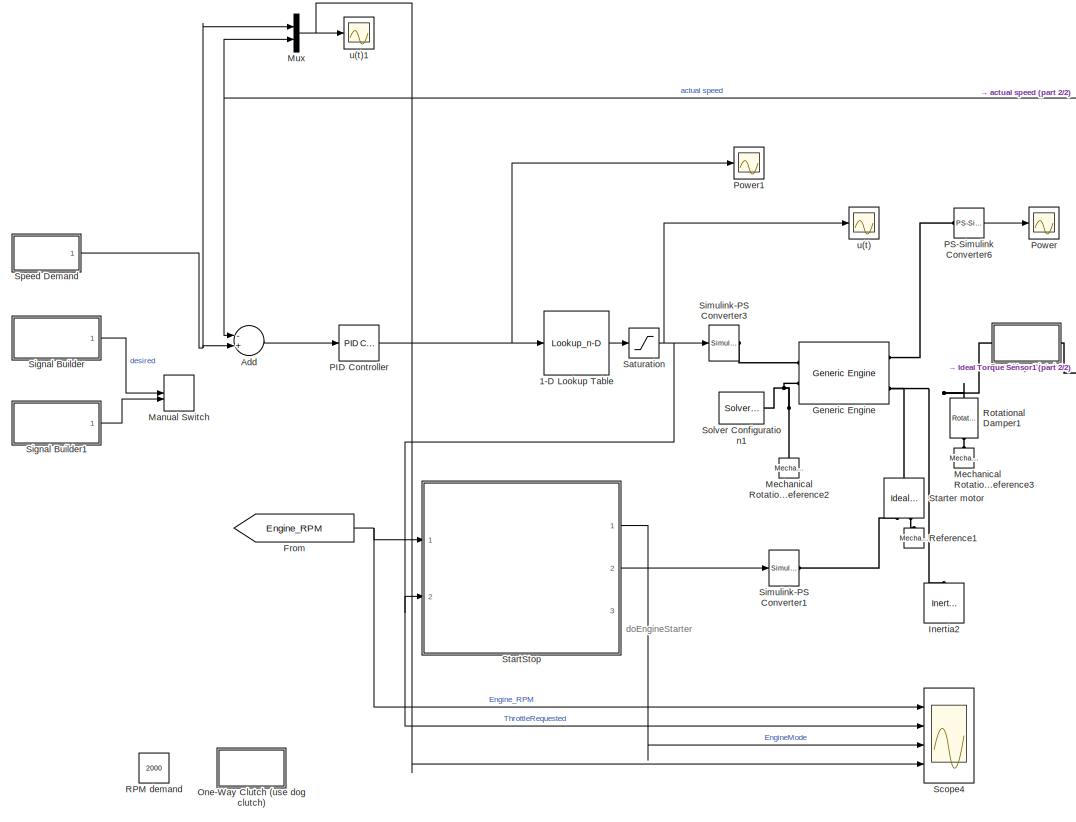
[diagram: root canvas - part 1/2, left side, full height]
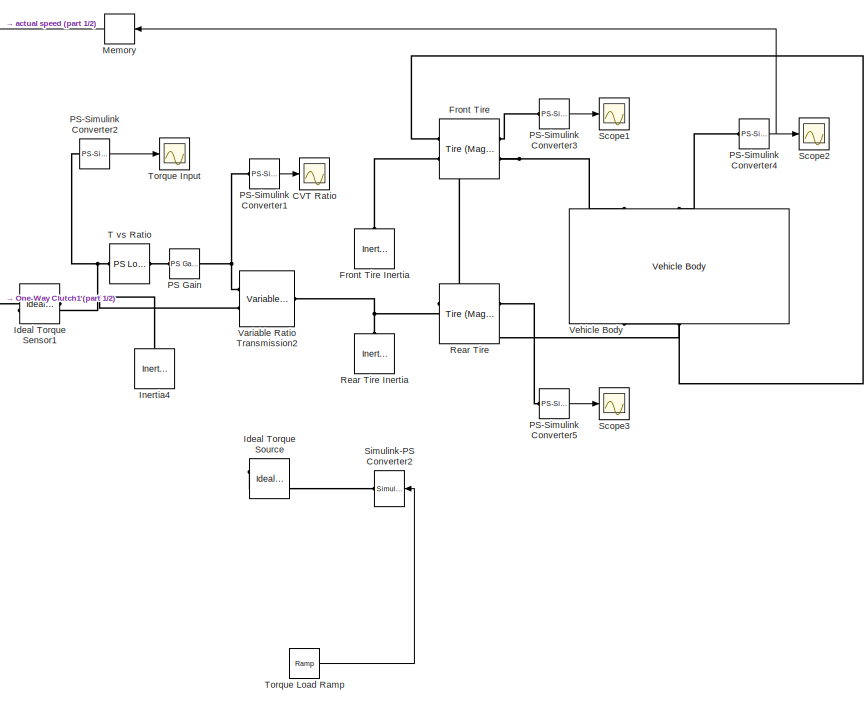
[diagram: root canvas - part 2/2, right side, full height]
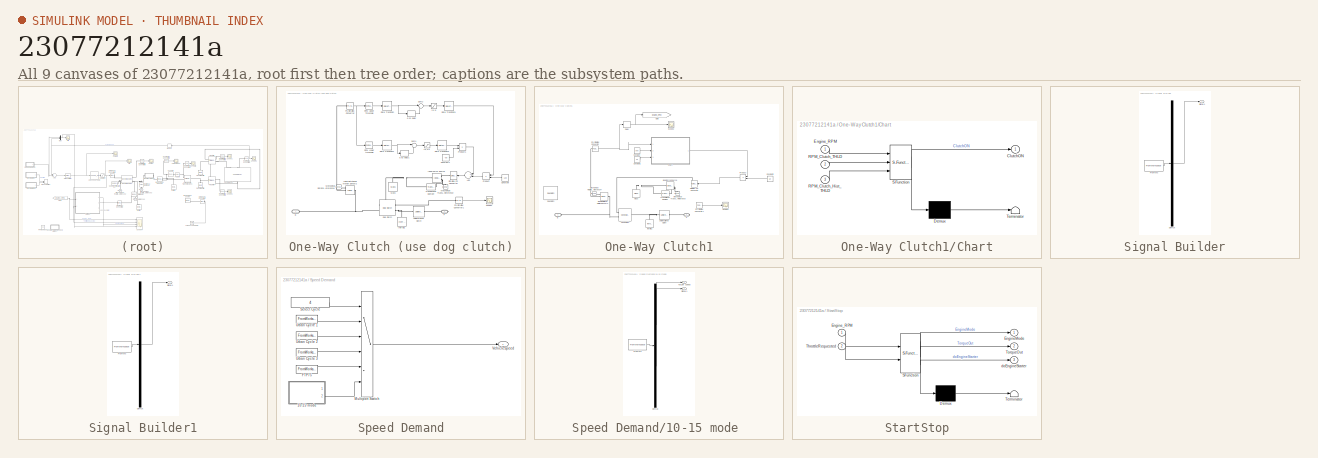
[diagram: thumbnail index - all 9 canvases of the model, root first then tree order]
MODEL slx_23077212141a
KIND model
BLOCK [Lookup_n-D] 1-D Lookup Table
  BreakpointsForDimension1 = [0 10]
  InternalRulePriority = Speed
  NumberOfTableDimensions = 1
  Ports = [1, 1]
  RndMeth = Simplest
  Table = [0 1]
BLOCK [Sum] Add
  InputSameDT = off
  Inputs = -+
  OutDataTypeStr = Inherit: Inherit via internal rule
  Ports = [2, 1]
  SaturateOnIntegerOverflow = off
BLOCK [Scope] CVT Ratio
  DataFormat = StructureWithTime
  Floating = off
  LimitDataPoints = off
  NumInputPorts = 1
  Ports = [1]
  SampleTime = 0
  SaveName = ScopeData1
  ShowLegends = off
  YMax = 22
  YMin = 2
BLOCK [From] From
  GotoTag = Engine_RPM
  TagVisibility = global
BLOCK [Reference] Front Tire   REF=sdl_lib/Tires & Vehicles/Tire (Magic Formula)
  B_m = 10
  B_m_unit = 1
  C_m = 1.9
  C_m_unit = 1
  ClassName = tire_magic
  ComponentPath = sdl.tires.tire_magic
  ComponentVariantNames = tire_magic
  ComponentVariants = sdl.tires.tire_magic
  D_m = 1
  D_m_unit = 1
  E_m = 0.97
  E_m_unit = 1
  F_x1 = 1.5*Vehicle_Mass_kg*9.8/2
  F_x1_unit = N
  F_z1 = Vehicle_Mass_kg*9.8/2
  F_z1_unit = N
  LogSimulationData = off
  Ports = [0, 0, 0, 0, 0, 2, 2]
  SchemaVersion = 1
  SourceBlock = sdl_lib/Tires & Vehicles/Tire (Magic Formula)
  SourceFile = sdl.tires.tire_magic
  SourceType = Tire (Magic Formula)
  alpha = -0.003
  alpha_unit = 1
  beta = 0.97
  beta_unit = 1
  coeff = 0.015
  coeff_a = 84e-4
  coeff_a_unit = 1
  coeff_b = 6.2e-4
  coeff_b_unit = s/m
  coeff_c = 1.6e-4
  coeff_c_unit = s^2/m^2
  coeff_unit = 1
  damping = 1000
  damping_unit = N/(m/s)
  fz0 = 4e+3
  fz0_unit = N
  inertia = 1
  inertia_unit = kg*m^2
  initial_velocity = 0
  initial_velocity_unit = rad/s
  kappa1 = 10
  kappa1_unit = 1
  model_compliance = 0
  model_compliance_unit = 1
  model_inertia = 0
  model_inertia_unit = 1
  model_resistance = 0
  model_resistance_unit = 1
  p_Cx = 1.685
  p_Cx_unit = 1
  p_Dx = [ 1.21 -0.037 ]
  p_Dx_unit = 1
  p_Ex = [ 0.344 0.095 -0.02 0 ]
  p_Ex_unit = 1
  p_Hx = [ -0.002 0.002 ]
  p_Hx_unit = 1
  p_Kx = [ 21.51 -0.163 0.245 ]
  p_Kx_unit = 1
  p_Vx = [ 0 0 ]
  p_Vx_unit = 1
  p_tire = 250e3
  p_tire_unit = Pa
  parameterization = 1
  parameterization_unit = 1
  r_e = 0.1778
  r_e_unit = m
  resistance_model = 1
  resistance_model_unit = 1
  stiffness = 1e+6
  stiffness_unit = N/m
  v_thr = 1e-3
  v_thr_unit = m/s
  v_tr_thr = 0.1
  v_tr_thr_unit = m/s
BLOCK [Reference] Front Tire Inertia  REF=fl_lib/Mechanical/Rotational Elements/Inertia
  ClassName = inertia
  ComponentPath = foundation.mechanical.rotational.inertia
  ComponentVariantNames = inertia
  ComponentVariants = foundation.mechanical.rotational.inertia
  LogSimulationData = off
  Ports = [0, 0, 0, 0, 0, 1]
  SchemaVersion = 1
  SourceBlock = fl_lib/Mechanical/Rotational Elements/Inertia
  SourceFile = foundation.mechanical.rotational.inertia
  SourceType = Inertia
  inertia = 0.01
  inertia_unit = kg*m^2
  t = 0
  t_priority = High
  t_specify = off
  t_unit = N*m
  w = 0
  w_priority = Low
  w_specify = on
  w_unit = rad/s
BLOCK [Reference] Generic Engine  REF=sdl_lib/Engines/Generic Engine
  ClassName = generic_engine
  ComponentPath = sdl.engines.generic_engine
  ComponentVariantNames = generic_engine
  ComponentVariants = sdl.engines.generic_engine
  LogSimulationData = on
  P_max = 10
  P_max_unit = HP
  Ports = [0, 0, 0, 0, 0, 2, 3]
  SchemaVersion = 1
  SourceBlock = sdl_lib/Engines/Generic Engine
  SourceFile = sdl.engines.generic_engine
  SourceType = Generic Engine
  T0 = 0
  T0_unit = 1
  bmep_tab = [ 0 250 500 625 750 1000 1.15e+3 1.25e+3 ]
  bmep_tab_unit = kPa
  bsfc_tab = [ 410 380 300 280 270 290 320 380; 410 370 290 270 260 270 285 320; 415 380 290 275 265 270 270 300; 420 390 310 290 285 280 280 285; 430 410 340 320 310 300 310 320; 450 430 370 340 330 330 350 380 ]
  bsfc_tab_unit = g/hr/kW
  displaced_volume = 400
  displaced_volume_unit = cm^3
  engine_type = 1
  engine_type_unit = 1
  fc_interp_method = 1
  fc_interp_method_unit = 1
  fc_model = 3
  fc_model_unit = 1
  fc_per_rev = 25
  fc_per_rev_unit = mg/rev
  fc_tab = [ 0.5 0.9 1.4 1.6 1.9 2.7 3.4 4.4; 1 1.7 2.7 3.1 3.6 5 6 7.4; 1.4 2.7 4 4.8 5.6 7.5 8.5 10.5; 2 3.6 5.8 6.7 8 10.4 11.7 13.3; 2.5 4.8 7.9 9.4 10.8 14 16.2 18.6; 3.1 6 10.3 11.9 13.8 18.4 22 26.5 ]
  fc_tab_unit = g/s
  fc_trq_tab = [ 0 80 160 200 240 320 360 400 ]
  fc_trq_tab_unit = N*m
  fc_w_tab = [ 1000 2e+3 3e+3 4e+3 5e+3 6e+3 ]
  fc_w_tab_unit = rpm
  idle_speed = 0
  idle_speed_reference = 800
  idle_speed_reference_unit = rpm
  idle_speed_unit = 1
  idle_w_thr = 10
  idle_w_thr_unit = rpm
  inertia = 0.01
  inertia_unit = kg*m^2
  initial_velocity = 0
  initial_velocity_unit = rpm
  interp_method = 1
  interp_method_unit = 1
  model_inertia = 1
  model_inertia_unit = 1
  model_parameterization = 1
  model_parameterization_unit = 1
  model_time_constant = 0
  model_time_constant_unit = 1
  pwr_tab = [ 2e+4 4e+4 7.8e+4 1.2e+5 1.45e+5 1.48e+5 1.25e+5 6e+4 ]
  pwr_tab_unit = W
  rev_per_cycle = 2
  rev_per_cycle_unit = 1
  tau_controller = 0.01
  tau_controller_unit = s
  time_constant = 0.2
  time_constant_unit = s
  trq_tab = [ 380 380 380 380 350 280 200 80 ]
  trq_tab_unit = N*m
  w_P_max = 8500
  w_P_max_unit = rpm
  w_max = 9000
  w_max_unit = rpm
  w_min = 500
  w_min_unit = rpm
  w_tab = [ 500 1000 2e+3 3e+3 4e+3 5e+3 6e+3 7e+3 ]
  w_tab_unit = rpm
  w_thr = 100
  w_thr_unit = rpm
BLOCK [Reference] Ideal Torque Sensor1  REF=fl_lib/Mechanical/Mechanical Sensors/Ideal Torque Sensor
  ClassName = torque
  ComponentPath = foundation.mechanical.sensors.torque
  ComponentVariantNames = torque
  ComponentVariants = foundation.mechanical.sensors.torque
  LogSimulationData = on
  Ports = [0, 0, 0, 0, 0, 1, 2]
  SchemaVersion = 1
  SourceBlock = fl_lib/Mechanical/Mechanical Sensors/Ideal Torque Sensor
  SourceFile = foundation.mechanical.sensors.torque
  SourceType = Ideal Torque Sensor
BLOCK [Reference] Ideal Torque Source  REF=fl_lib/Mechanical/Mechanical Sources/Ideal Torque Source
  ClassName = torque
  Commented = on
  ComponentPath = foundation.mechanical.sources.torque
  ComponentVariantNames = torque
  ComponentVariants = foundation.mechanical.sources.torque
  LogSimulationData = on
  Ports = [0, 0, 0, 0, 0, 1, 2]
  SchemaVersion = 1
  SourceBlock = fl_lib/Mechanical/Mechanical Sources/Ideal Torque Source
  SourceFile = foundation.mechanical.sources.torque
  SourceType = Ideal Torque Source
BLOCK [Reference] Inertia2  REF=fl_lib/Mechanical/Rotational Elements/Inertia
  ClassName = inertia
  Commented = on
  ComponentPath = foundation.mechanical.rotational.inertia
  ComponentVariantNames = inertia
  ComponentVariants = foundation.mechanical.rotational.inertia
  LogSimulationData = off
  Ports = [0, 0, 0, 0, 0, 1]
  SchemaVersion = 1
  SourceBlock = fl_lib/Mechanical/Rotational Elements/Inertia
  SourceFile = foundation.mechanical.rotational.inertia
  SourceType = Inertia
  inertia = 0.005
  inertia_unit = kg*m^2
  t = 0
  t_priority = High
  t_specify = off
  t_unit = N*m
  w = 800
  w_priority = High
  w_specify = off
  w_unit = rpm
BLOCK [Reference] Inertia4  REF=fl_lib/Mechanical/Rotational Elements/Inertia
  ClassName = inertia
  ComponentPath = foundation.mechanical.rotational.inertia
  ComponentVariantNames = inertia
  ComponentVariants = foundation.mechanical.rotational.inertia
  LogSimulationData = on
  Ports = [0, 0, 0, 0, 0, 1]
  SchemaVersion = 1
  SourceBlock = fl_lib/Mechanical/Rotational Elements/Inertia
  SourceFile = foundation.mechanical.rotational.inertia
  SourceType = Inertia
  inertia = 0.005
  inertia_unit = kg*m^2
  t = 0
  t_priority = High
  t_specify = off
  t_unit = N*m
  w = 0
  w_priority = Low
  w_specify = on
  w_unit = rpm
BLOCK [ManualSwitch] Manual Switch
  CurrentSetting = 0
BLOCK [Reference] Mechanical Rotational Reference2  REF=fl_lib/Mechanical/Rotational Elements/Mechanical
Rotational Reference
  ClassName = reference
  ComponentPath = foundation.mechanical.rotational.reference
  ComponentVariantNames = reference
  ComponentVariants = foundation.mechanical.rotational.reference
  LogSimulationData = off
  Ports = [0, 0, 0, 0, 0, 1]
  SchemaVersion = 1
  SourceBlock = fl_lib/Mechanical/Rotational Elements/Mechanical\nRotational Reference
  SourceFile = foundation.mechanical.rotational.reference
  SourceType = Mechanical\nRotational Reference
BLOCK [Reference] Mechanical Rotational Reference3  REF=fl_lib/Mechanical/Rotational Elements/Mechanical
Rotational Reference
  ClassName = reference
  ComponentPath = foundation.mechanical.rotational.reference
  ComponentVariantNames = reference
  ComponentVariants = foundation.mechanical.rotational.reference
  LogSimulationData = off
  Ports = [0, 0, 0, 0, 0, 1]
  SchemaVersion = 1
  SourceBlock = fl_lib/Mechanical/Rotational Elements/Mechanical\nRotational Reference
  SourceFile = foundation.mechanical.rotational.reference
  SourceType = Mechanical\nRotational Reference
BLOCK [Memory] Memory
BLOCK [Mux] Mux
  DisplayOption = bar
  Inputs = 2
  Ports = [2, 1]
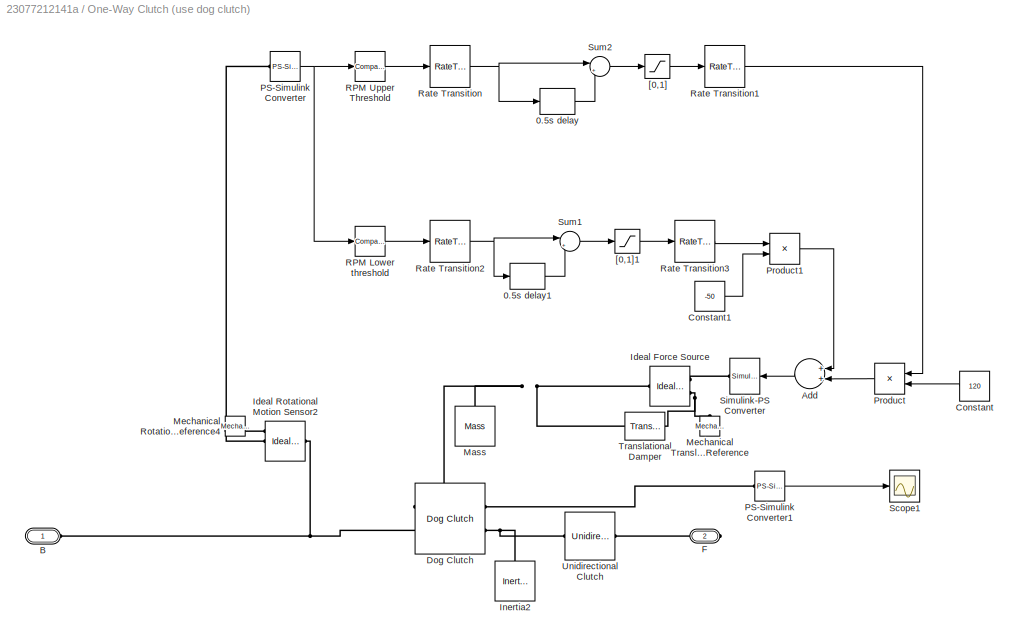
BLOCK [SubSystem] One-Way Clutch (use dog clutch)
  Commented = on
  Ports = [0, 0, 0, 0, 0, 1, 1]
  RequestExecContextInheritance = off
BLOCK [Delay] One-Way Clutch (use dog clutch)/0.5s delay
  DelayLength = 5
  InputPortMap = u0
  Ports = [1, 1]
  SampleTime = 0.01
  UserDataPersistent = on
BLOCK [Delay] One-Way Clutch (use dog clutch)/0.5s delay1
  DelayLength = 5
  InputPortMap = u0
  Ports = [1, 1]
  SampleTime = 0.01
  UserDataPersistent = on
BLOCK [Sum] One-Way Clutch (use dog clutch)/Add
  InputSameDT = off
  OutDataTypeStr = Inherit: Inherit via internal rule
  Ports = [2, 1]
  SaturateOnIntegerOverflow = off
BLOCK [PMIOPort] One-Way Clutch (use dog clutch)/B
  Port = 1
  Side = Left
BLOCK [Constant] One-Way Clutch (use dog clutch)/Constant
  Value = 120
BLOCK [Constant] One-Way Clutch (use dog clutch)/Constant1
  Value = -50
BLOCK [Reference] One-Way Clutch (use dog clutch)/Dog Clutch  REF=sdl_lib/Clutches/Dog Clutch
  ClassName = dog_clutch
  ComponentPath = sdl.clutches.dog_clutch
  ComponentVariantNames = dog_clutch
  ComponentVariants = sdl.clutches.dog_clutch
  LogSimulationData = off
  Ports = [0, 0, 0, 0, 0, 2, 2]
  SchemaVersion = 1
  SourceBlock = sdl_lib/Clutches/Dog Clutch
  SourceFile = sdl.clutches.dog_clutch
  SourceType = Dog Clutch
  back_stop = 1
  back_stop_unit = 1
  clutch_backlash = 10
  clutch_backlash_unit = deg
  clutch_damping = 100
  clutch_damping_unit = N*m/(rad/s)
  clutch_stiffness = 1e+7
  clutch_stiffness_unit = N*m/rad
  direction = 1
  direction_unit = 1
  engagement_overlap = 3
  engagement_overlap_unit = mm
  engagement_velocity = Inf
  engagement_velocity_unit = rad/s
  fric_coeff = 0.05
  fric_coeff_unit = 1
  init_pos = 0
  init_pos_unit = mm
  init_rel_angle = 0
  init_rel_angle_unit = deg
  initial_state_engaged = 0
  initial_state_engaged_unit = 1
  max_torque = 10000
  max_torque_unit = N*m
  model = 1
  model_unit = 1
  n_teeth = 6
  n_teeth_unit = 1
  radius = 50
  radius_unit = mm
  ring_hub_gap = 3
  ring_hub_gap_unit = mm
  tooth_height = 10
  tooth_height_unit = mm
  transl_damping = 100000
  transl_damping_unit = N/(m/s)
  transl_stiffness = 1e+6
  transl_stiffness_unit = N/m
  visc_fric_transl = 10
  visc_fric_transl_unit = N/(m/s)
BLOCK [PMIOPort] One-Way Clutch (use dog clutch)/F
  Port = 2
  Side = Right
BLOCK [Reference] One-Way Clutch (use dog clutch)/Ideal Force Source  REF=fl_lib/Mechanical/Mechanical Sources/Ideal Force Source
  ClassName = force
  ComponentPath = foundation.mechanical.sources.force
  ComponentVariantNames = force
  ComponentVariants = foundation.mechanical.sources.force
  LogSimulationData = off
  Ports = [0, 0, 0, 0, 0, 1, 2]
  SchemaVersion = 1
  SourceBlock = fl_lib/Mechanical/Mechanical Sources/Ideal Force Source
  SourceFile = foundation.mechanical.sources.force
  SourceType = Ideal Force Source
BLOCK [Reference] One-Way Clutch (use dog clutch)/Ideal Rotational Motion Sensor2  REF=fl_lib/Mechanical/Mechanical Sensors/Ideal Rotational
Motion Sensor
  ClassName = angular_velocity
  ComponentPath = foundation.mechanical.sensors.angular_velocity
  ComponentVariantNames = angular_velocity
  ComponentVariants = foundation.mechanical.sensors.angular_velocity
  LogSimulationData = off
  Ports = [0, 0, 0, 0, 0, 1, 3]
  SchemaVersion = 1
  SourceBlock = fl_lib/Mechanical/Mechanical Sensors/Ideal Rotational\nMotion Sensor
  SourceFile = foundation.mechanical.sensors.angular_velocity
  SourceType = Ideal Rotational\nMotion Sensor
  offset = 0
  offset_unit = rad
BLOCK [Reference] One-Way Clutch (use dog clutch)/Inertia2  REF=fl_lib/Mechanical/Rotational Elements/Inertia
  ClassName = inertia
  ComponentPath = foundation.mechanical.rotational.inertia
  ComponentVariantNames = inertia
  ComponentVariants = foundation.mechanical.rotational.inertia
  LogSimulationData = off
  Ports = [0, 0, 0, 0, 0, 1]
  SchemaVersion = 1
  SourceBlock = fl_lib/Mechanical/Rotational Elements/Inertia
  SourceFile = foundation.mechanical.rotational.inertia
  SourceType = Inertia
  inertia = 0.001
  inertia_unit = kg*m^2
  t = 0
  t_priority = High
  t_specify = off
  t_unit = N*m
  w = 0
  w_priority = Low
  w_specify = on
  w_unit = rpm
BLOCK [Reference] One-Way Clutch (use dog clutch)/Mass  REF=fl_lib/Mechanical/Translational
Elements/Mass
  ClassName = mass
  ComponentPath = foundation.mechanical.translational.mass
  ComponentVariantNames = mass
  ComponentVariants = foundation.mechanical.translational.mass
  LogSimulationData = on
  Ports = [0, 0, 0, 0, 0, 1]
  SchemaVersion = 1
  SourceBlock = fl_lib/Mechanical/Translational\nElements/Mass
  SourceFile = foundation.mechanical.translational.mass
  SourceType = Mass
  f = 0
  f_priority = High
  f_specify = off
  f_unit = N
  mass = 0.1
  mass_unit = kg
  v = 0
  v_priority = Low
  v_specify = on
  v_unit = m/s
BLOCK [Reference] One-Way Clutch (use dog clutch)/Mechanical Rotational Reference4  REF=fl_lib/Mechanical/Rotational Elements/Mechanical
Rotational Reference
  ClassName = reference
  ComponentPath = foundation.mechanical.rotational.reference
  ComponentVariantNames = reference
  ComponentVariants = foundation.mechanical.rotational.reference
  LogSimulationData = off
  Ports = [0, 0, 0, 0, 0, 1]
  SchemaVersion = 1
  SourceBlock = fl_lib/Mechanical/Rotational Elements/Mechanical\nRotational Reference
  SourceFile = foundation.mechanical.rotational.reference
  SourceType = Mechanical\nRotational Reference
BLOCK [Reference] One-Way Clutch (use dog clutch)/Mechanical Translational Reference  REF=fl_lib/Mechanical/Translational
Elements/Mechanical
Translational
Reference
  ClassName = reference
  ComponentPath = foundation.mechanical.translational.reference
  ComponentVariantNames = reference
  ComponentVariants = foundation.mechanical.translational.reference
  LogSimulationData = off
  Ports = [0, 0, 0, 0, 0, 1]
  SchemaVersion = 1
  SourceBlock = fl_lib/Mechanical/Translational\nElements/Mechanical\nTranslational\nReference
  SourceFile = foundation.mechanical.translational.reference
  SourceType = Mechanical\nTranslational\nReference
BLOCK [Reference] One-Way Clutch (use dog clutch)/PS-Simulink Converter  REF=nesl_utility/PS-Simulink
Converter
  AffineConversion = off
  Frequencies = []
  LeftPortType = input
  PhysicalDomain = network_engine_domain
  Ports = [0, 1, 0, 0, 0, 1]
  PseudoPeriodic = off
  RightPortType = output
  SourceBlock = nesl_utility/PS-Simulink\nConverter
  SourceType = PS-Simulink\nConverter
  SubClassName = ps_output
  Unit = rpm
BLOCK [Reference] One-Way Clutch (use dog clutch)/PS-Simulink Converter1  REF=nesl_utility/PS-Simulink
Converter
  AffineConversion = off
  Frequencies = []
  LeftPortType = input
  PhysicalDomain = network_engine_domain
  Ports = [0, 1, 0, 0, 0, 1]
  PseudoPeriodic = off
  RightPortType = output
  SourceBlock = nesl_utility/PS-Simulink\nConverter
  SourceType = PS-Simulink\nConverter
  SubClassName = ps_output
  Unit = mm
BLOCK [Product] One-Way Clutch (use dog clutch)/Product
  InputSameDT = off
  OutDataTypeStr = Inherit: Inherit via internal rule
  Ports = [2, 1]
  RndMeth = Floor
  SaturateOnIntegerOverflow = off
BLOCK [Product] One-Way Clutch (use dog clutch)/Product1
  InputSameDT = off
  OutDataTypeStr = Inherit: Inherit via internal rule
  Ports = [2, 1]
  RndMeth = Floor
  SaturateOnIntegerOverflow = off
BLOCK [Reference] One-Way Clutch (use dog clutch)/RPM Lower threshold  REF=simulink/Logic and Bit
Operations/Compare
To Constant
  OutDataTypeStr = uint8
  Ports = [1, 1]
  SourceBlock = simulink/Logic and Bit\nOperations/Compare\nTo Constant
  SourceType = Compare To Constant
  ZeroCross = off
  const = 830
  relop = <
BLOCK [Reference] One-Way Clutch (use dog clutch)/RPM Upper Threshold  REF=simulink/Logic and Bit
Operations/Compare
To Constant
  OutDataTypeStr = uint8
  Ports = [1, 1]
  SourceBlock = simulink/Logic and Bit\nOperations/Compare\nTo Constant
  SourceType = Compare To Constant
  ZeroCross = off
  const = 850
  relop = >=
BLOCK [RateTransition] One-Way Clutch (use dog clutch)/Rate Transition
  OutPortSampleTime = 0.01
BLOCK [RateTransition] One-Way Clutch (use dog clutch)/Rate Transition1
  OutPortSampleTime = 0.001
BLOCK [RateTransition] One-Way Clutch (use dog clutch)/Rate Transition2
  OutPortSampleTime = 0.01
BLOCK [RateTransition] One-Way Clutch (use dog clutch)/Rate Transition3
  OutPortSampleTime = 0.001
BLOCK [Scope] One-Way Clutch (use dog clutch)/Scope1
  DataFormat = StructureWithTime
  Floating = off
  LimitDataPoints = off
  NumInputPorts = 1
  Ports = [1]
  SampleTime = 0
  SaveName = ScopeData2
  ShowLegends = off
  YMax = 13.0012
  YMin = 13
  ZoomMode = xonly
BLOCK [Reference] One-Way Clutch (use dog clutch)/Simulink-PS Converter  REF=nesl_utility/Simulink-PS
Converter
  AffineConversion = off
  Frequencies = []
  InputFilterTimeConstant = 0.001
  InputFiltering = off
  LeftPortType = input
  NoiseDistribution = none
  NoiseParameters = []
  PhysicalDomain = network_engine_domain
  Ports = [1, 0, 0, 0, 0, 0, 1]
  PseudoPeriodic = off
  RightPortType = output
  SimscapeFilterOrder = 1
  SourceBlock = nesl_utility/Simulink-PS\nConverter
  SourceType = Simulink-PS\nConverter
  SubClassName = ps_input
  UdotUserProvided = 1
  Unit = 1
BLOCK [Sum] One-Way Clutch (use dog clutch)/Sum1
  IconShape = round
  Inputs = |+-
  Ports = [2, 1]
BLOCK [Sum] One-Way Clutch (use dog clutch)/Sum2
  IconShape = round
  Inputs = |+-
  Ports = [2, 1]
BLOCK [Reference] One-Way Clutch (use dog clutch)/Translational Damper  REF=fl_lib/Mechanical/Translational
Elements/Translational Damper
  ClassName = damper
  ComponentPath = foundation.mechanical.translational.damper
  ComponentVariantNames = damper
  ComponentVariants = foundation.mechanical.translational.damper
  D = 100
  D_unit = N/(m/s)
  LogSimulationData = off
  Ports = [0, 0, 0, 0, 0, 1, 1]
  SchemaVersion = 1
  SourceBlock = fl_lib/Mechanical/Translational\nElements/Translational Damper
  SourceFile = foundation.mechanical.translational.damper
  SourceType = Translational Damper
  f = 0
  f_priority = High
  f_specify = off
  f_unit = N
  v = 0
  v_priority = High
  v_specify = off
  v_unit = m/s
BLOCK [Reference] One-Way Clutch (use dog clutch)/Unidirectional Clutch  REF=sdl_lib/Clutches/Unidirectional
Clutch
  ClassName = unidirectional_clutch
  ComponentPath = sdl.clutches.unidirectional_clutch
  ComponentVariantNames = unidirectional_clutch
  ComponentVariants = sdl.clutches.unidirectional_clutch
  LogSimulationData = off
  Ports = [0, 0, 0, 0, 0, 1, 1]
  SchemaVersion = 1
  SourceBlock = sdl_lib/Clutches/Unidirectional\nClutch
  SourceFile = sdl.clutches.unidirectional_clutch
  SourceType = Unidirectional\nClutch
  initial_state_locked = 0
  initial_state_locked_unit = 1
  transmission_direction = 1
  transmission_direction_unit = 1
BLOCK [Saturate] One-Way Clutch (use dog clutch)/[0,1]
  InputPortMap = u0
  LowerLimit = 0
  OutDataTypeStr = double
  Ports = [1, 1]
  UpperLimit = 1
BLOCK [Saturate] One-Way Clutch (use dog clutch)/[0,1]1
  InputPortMap = u0
  LowerLimit = 0
  OutDataTypeStr = double
  Ports = [1, 1]
  UpperLimit = 1
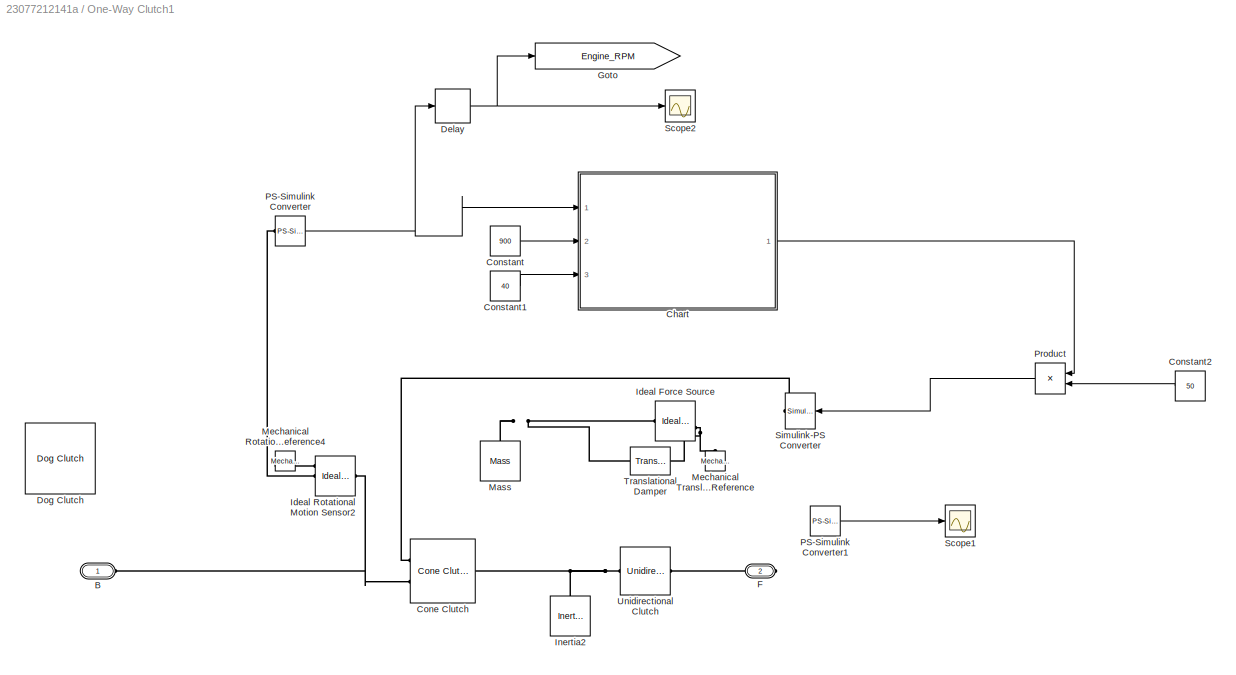
BLOCK [SubSystem] One-Way Clutch1
  Ports = [0, 0, 0, 0, 0, 1, 1]
  RequestExecContextInheritance = off
BLOCK [PMIOPort] One-Way Clutch1/B
  Port = 1
  Side = Left
BLOCK [SubSystem] One-Way Clutch1/Chart
  ErrorFcn = Stateflow.Translate.translate
  PermitHierarchicalResolution = ExplicitOnly
  Ports = [3, 1]
  RequestExecContextInheritance = off
  SFBlockType = Chart
  TreatAsAtomicUnit = on
BLOCK [Demux] One-Way Clutch1/Chart/ Demux 
  Outputs = 1
  Ports = [1, 1]
BLOCK [S-Function] One-Way Clutch1/Chart/ SFunction 
  EnableBusSupport = on
  FunctionName = sf_sfun
  PortCounts = [3 2]
  Ports = [3, 2]
  Tag = Stateflow S-Function Engine_Vehicle_CVT_RS_System1_StartStop 3
BLOCK [Terminator] One-Way Clutch1/Chart/ Terminator 
BLOCK [Outport] One-Way Clutch1/Chart/ClutchON
  IconDisplay = Port number
BLOCK [Inport] One-Way Clutch1/Chart/Engine_RPM
  IconDisplay = Port number
BLOCK [Inport] One-Way Clutch1/Chart/RPM_Clutch_Hist_THLD
  IconDisplay = Port number
  Port = 3
BLOCK [Inport] One-Way Clutch1/Chart/RPM_Clutch_THLD
  IconDisplay = Port number
  Port = 2
BLOCK [Reference] One-Way Clutch1/Cone Clutch  REF=sdl_lib/Clutches/Cone Clutch
  ClassName = cone_clutch
  ComponentPath = sdl.clutches.cone_clutch
  ComponentVariantNames = cone_clutch
  ComponentVariants = sdl.clutches.cone_clutch
  LogSimulationData = off
  Ports = [0, 0, 0, 0, 0, 2, 1]
  SchemaVersion = 1
  SourceBlock = sdl_lib/Clutches/Cone Clutch
  SourceFile = sdl.clutches.cone_clutch
  SourceType = Cone Clutch
  d_i = 100
  d_i_unit = mm
  d_o = 200
  d_o_unit = mm
  force_min = 10
  force_min_unit = N
  friction_model = 1
  friction_model_unit = 1
  initial_state_locked = 0
  initial_state_locked_unit = 1
  mu_coulomb = 0.25
  mu_coulomb_unit = 1
  mu_coulomb_vector = [ 0.29 0.28 0.26 0.22 0.21 0.2 0.2 0.19 0.19 0.19 0.19 0.19 ]
  mu_coulomb_vector_unit = 1
  mu_extrap_method = 1
  mu_extrap_method_unit = 1
  mu_interp_method = 1
  mu_interp_method_unit = 1
  mu_static = 0.5
  mu_static_unit = 1
  mu_w_vector = [ 0 0.1 0.2 0.3 0.4 0.5 1 2 5 10 100 1000 ]
  mu_w_vector_unit = rad/s
  theta = 10
  theta_unit = deg
  w_tol = 1
  w_tol_unit = rad/s
BLOCK [Constant] One-Way Clutch1/Constant
  Value = 900
BLOCK [Constant] One-Way Clutch1/Constant1
  Value = 40
BLOCK [Constant] One-Way Clutch1/Constant2
  Value = 50
BLOCK [Delay] One-Way Clutch1/Delay
  Commented = through
  DelayLength = 1
  InitialCondition = 0
  InputPortMap = u0
  Ports = [1, 1]
BLOCK [Reference] One-Way Clutch1/Dog Clutch  REF=sdl_lib/Clutches/Dog Clutch
  ClassName = dog_clutch
  Commented = on
  ComponentPath = sdl.clutches.dog_clutch
  ComponentVariantNames = dog_clutch
  ComponentVariants = sdl.clutches.dog_clutch
  LogSimulationData = off
  Ports = [0, 0, 0, 0, 0, 2, 2]
  SchemaVersion = 1
  SourceBlock = sdl_lib/Clutches/Dog Clutch
  SourceFile = sdl.clutches.dog_clutch
  SourceType = Dog Clutch
  back_stop = 1
  back_stop_unit = 1
  clutch_backlash = 10
  clutch_backlash_unit = deg
  clutch_damping = 100
  clutch_damping_unit = N*m/(rad/s)
  clutch_stiffness = 1e+7
  clutch_stiffness_unit = N*m/rad
  direction = 1
  direction_unit = 1
  engagement_overlap = 3
  engagement_overlap_unit = mm
  engagement_velocity = inf
  engagement_velocity_unit = rad/s
  fric_coeff = 0.05
  fric_coeff_unit = 1
  init_pos = 0
  init_pos_unit = mm
  init_rel_angle = 0
  init_rel_angle_unit = deg
  initial_state_engaged = 0
  initial_state_engaged_unit = 1
  max_torque = 50000
  max_torque_unit = N*m
  model = 1
  model_unit = 1
  n_teeth = 6
  n_teeth_unit = 1
  radius = 50
  radius_unit = mm
  ring_hub_gap = 3
  ring_hub_gap_unit = mm
  tooth_height = 10
  tooth_height_unit = mm
  transl_damping = 1e5
  transl_damping_unit = N/(m/s)
  transl_stiffness = 1e5
  transl_stiffness_unit = N/m
  visc_fric_transl = 10
  visc_fric_transl_unit = N/(m/s)
BLOCK [PMIOPort] One-Way Clutch1/F
  Port = 2
  Side = Right
BLOCK [Goto] One-Way Clutch1/Goto
  GotoTag = Engine_RPM
  TagVisibility = global
BLOCK [Reference] One-Way Clutch1/Ideal Force Source  REF=fl_lib/Mechanical/Mechanical Sources/Ideal Force Source
  ClassName = force
  Commented = on
  ComponentPath = foundation.mechanical.sources.force
  ComponentVariantNames = force
  ComponentVariants = foundation.mechanical.sources.force
  LogSimulationData = off
  Ports = [0, 0, 0, 0, 0, 1, 2]
  SchemaVersion = 1
  SourceBlock = fl_lib/Mechanical/Mechanical Sources/Ideal Force Source
  SourceFile = foundation.mechanical.sources.force
  SourceType = Ideal Force Source
BLOCK [Reference] One-Way Clutch1/Ideal Rotational Motion Sensor2  REF=fl_lib/Mechanical/Mechanical Sensors/Ideal Rotational
Motion Sensor
  ClassName = angular_velocity
  ComponentPath = foundation.mechanical.sensors.angular_velocity
  ComponentVariantNames = angular_velocity
  ComponentVariants = foundation.mechanical.sensors.angular_velocity
  LogSimulationData = off
  Ports = [0, 0, 0, 0, 0, 1, 3]
  SchemaVersion = 1
  SourceBlock = fl_lib/Mechanical/Mechanical Sensors/Ideal Rotational\nMotion Sensor
  SourceFile = foundation.mechanical.sensors.angular_velocity
  SourceType = Ideal Rotational\nMotion Sensor
  offset = 0
  offset_unit = rad
BLOCK [Reference] One-Way Clutch1/Inertia2  REF=fl_lib/Mechanical/Rotational Elements/Inertia
  ClassName = inertia
  ComponentPath = foundation.mechanical.rotational.inertia
  ComponentVariantNames = inertia
  ComponentVariants = foundation.mechanical.rotational.inertia
  LogSimulationData = off
  Ports = [0, 0, 0, 0, 0, 1]
  SchemaVersion = 1
  SourceBlock = fl_lib/Mechanical/Rotational Elements/Inertia
  SourceFile = foundation.mechanical.rotational.inertia
  SourceType = Inertia
  inertia = 0.001
  inertia_unit = kg*m^2
  t = 0
  t_priority = High
  t_specify = off
  t_unit = N*m
  w = 0
  w_priority = Low
  w_specify = on
  w_unit = rpm
BLOCK [Reference] One-Way Clutch1/Mass  REF=fl_lib/Mechanical/Translational
Elements/Mass
  ClassName = mass
  Commented = on
  ComponentPath = foundation.mechanical.translational.mass
  ComponentVariantNames = mass
  ComponentVariants = foundation.mechanical.translational.mass
  LogSimulationData = on
  Ports = [0, 0, 0, 0, 0, 1]
  SchemaVersion = 1
  SourceBlock = fl_lib/Mechanical/Translational\nElements/Mass
  SourceFile = foundation.mechanical.translational.mass
  SourceType = Mass
  f = 0
  f_priority = High
  f_specify = off
  f_unit = N
  mass = 0.1
  mass_unit = kg
  v = 0
  v_priority = Low
  v_specify = on
  v_unit = m/s
BLOCK [Reference] One-Way Clutch1/Mechanical Rotational Reference4  REF=fl_lib/Mechanical/Rotational Elements/Mechanical
Rotational Reference
  ClassName = reference
  ComponentPath = foundation.mechanical.rotational.reference
  ComponentVariantNames = reference
  ComponentVariants = foundation.mechanical.rotational.reference
  LogSimulationData = off
  Ports = [0, 0, 0, 0, 0, 1]
  SchemaVersion = 1
  SourceBlock = fl_lib/Mechanical/Rotational Elements/Mechanical\nRotational Reference
  SourceFile = foundation.mechanical.rotational.reference
  SourceType = Mechanical\nRotational Reference
BLOCK [Reference] One-Way Clutch1/Mechanical Translational Reference  REF=fl_lib/Mechanical/Translational
Elements/Mechanical
Translational
Reference
  ClassName = reference
  Commented = on
  ComponentPath = foundation.mechanical.translational.reference
  ComponentVariantNames = reference
  ComponentVariants = foundation.mechanical.translational.reference
  LogSimulationData = off
  Ports = [0, 0, 0, 0, 0, 1]
  SchemaVersion = 1
  SourceBlock = fl_lib/Mechanical/Translational\nElements/Mechanical\nTranslational\nReference
  SourceFile = foundation.mechanical.translational.reference
  SourceType = Mechanical\nTranslational\nReference
BLOCK [Reference] One-Way Clutch1/PS-Simulink Converter  REF=nesl_utility/PS-Simulink
Converter
  AffineConversion = off
  Frequencies = []
  LeftPortType = input
  PhysicalDomain = network_engine_domain
  Ports = [0, 1, 0, 0, 0, 1]
  PseudoPeriodic = off
  RightPortType = output
  SourceBlock = nesl_utility/PS-Simulink\nConverter
  SourceType = PS-Simulink\nConverter
  SubClassName = ps_output
  Unit = rpm
BLOCK [Reference] One-Way Clutch1/PS-Simulink Converter1  REF=nesl_utility/PS-Simulink
Converter
  AffineConversion = off
  Frequencies = []
  LeftPortType = input
  PhysicalDomain = network_engine_domain
  Ports = [0, 1, 0, 0, 0, 1]
  PseudoPeriodic = off
  RightPortType = output
  SourceBlock = nesl_utility/PS-Simulink\nConverter
  SourceType = PS-Simulink\nConverter
  SubClassName = ps_output
  Unit = mm
BLOCK [Product] One-Way Clutch1/Product
  InputSameDT = off
  OutDataTypeStr = Inherit: Inherit via internal rule
  Ports = [2, 1]
  RndMeth = Floor
  SaturateOnIntegerOverflow = off
BLOCK [Scope] One-Way Clutch1/Scope1
  DataFormat = StructureWithTime
  Floating = off
  LimitDataPoints = off
  NumInputPorts = 1
  Ports = [1]
  SampleTime = 0
  SaveName = ScopeData2
  ShowLegends = off
  YMax = 15
  YMin = -2.5
BLOCK [Scope] One-Way Clutch1/Scope2
  DataFormat = StructureWithTime
  Floating = off
  LimitDataPoints = off
  NumInputPorts = 1
  Ports = [1]
  SampleTime = 0
  SaveName = ScopeData7
  ShowLegends = off
  TimeRange = 100
  YMax = 9000
  YMin = 0
BLOCK [Reference] One-Way Clutch1/Simulink-PS Converter  REF=nesl_utility/Simulink-PS
Converter
  AffineConversion = off
  Frequencies = []
  InputFilterTimeConstant = 0.001
  InputFiltering = off
  LeftPortType = input
  NoiseDistribution = none
  NoiseParameters = []
  PhysicalDomain = network_engine_domain
  Ports = [1, 0, 0, 0, 0, 0, 1]
  PseudoPeriodic = off
  RightPortType = output
  SimscapeFilterOrder = 1
  SourceBlock = nesl_utility/Simulink-PS\nConverter
  SourceType = Simulink-PS\nConverter
  SubClassName = ps_input
  UdotUserProvided = 1
  Unit = 1
BLOCK [Reference] One-Way Clutch1/Translational Damper  REF=fl_lib/Mechanical/Translational
Elements/Translational Damper
  ClassName = damper
  Commented = on
  ComponentPath = foundation.mechanical.translational.damper
  ComponentVariantNames = damper
  ComponentVariants = foundation.mechanical.translational.damper
  D = 100
  D_unit = N/(m/s)
  LogSimulationData = off
  Ports = [0, 0, 0, 0, 0, 1, 1]
  SchemaVersion = 1
  SourceBlock = fl_lib/Mechanical/Translational\nElements/Translational Damper
  SourceFile = foundation.mechanical.translational.damper
  SourceType = Translational Damper
  f = 0
  f_priority = High
  f_specify = off
  f_unit = N
  v = 0
  v_priority = High
  v_specify = off
  v_unit = m/s
BLOCK [Reference] One-Way Clutch1/Unidirectional Clutch  REF=sdl_lib/Clutches/Unidirectional
Clutch
  ClassName = unidirectional_clutch
  ComponentPath = sdl.clutches.unidirectional_clutch
  ComponentVariantNames = unidirectional_clutch
  ComponentVariants = sdl.clutches.unidirectional_clutch
  LogSimulationData = off
  Ports = [0, 0, 0, 0, 0, 1, 1]
  SchemaVersion = 1
  SourceBlock = sdl_lib/Clutches/Unidirectional\nClutch
  SourceFile = sdl.clutches.unidirectional_clutch
  SourceType = Unidirectional\nClutch
  initial_state_locked = 0
  initial_state_locked_unit = 1
  transmission_direction = 1
  transmission_direction_unit = 1
BLOCK [Reference] PID Controller  REF=simulink/Continuous/PID Controller
  AntiWindupMode = clamping
  Controller = PI
  D = 3
  DOutDataTypeStr = Inherit: Inherit via internal rule
  DOutMax = []
  DOutMin = []
  DParamDataTypeStr = Inherit: Inherit via internal rule
  DParamMax = []
  DParamMin = []
  DifferentiatorICPrevScaledInput = 0
  DifferentiatorOutDataTypeStr = Inherit: Inherit via internal rule
  DifferentiatorOutMax = []
  DifferentiatorOutMin = []
  ExternalReset = none
  FilterContinuousStateAttributes = ''
  FilterMethod = Forward Euler
  FilterOutDataTypeStr = Inherit: Inherit via internal rule
  FilterOutMax = []
  FilterOutMin = []
  FilterRTWStateStorageClass = Auto
  FilterStateMustResolveToSignalObject = off
  Form = Parallel
  I = 0.25
  IOutDataTypeStr = Inherit: Inherit via internal rule
  IOutMax = []
  IOutMin = []
  IParamDataTypeStr = Inherit: Inherit via internal rule
  IParamMax = []
  IParamMin = []
  IgnoreLimit = off
  InitialConditionForFilter = 0
  InitialConditionForIntegrator = 0
  InitialConditionSource = internal
  IntegratorContinuousStateAttributes = ''
  IntegratorMethod = Forward Euler
  IntegratorOutDataTypeStr = Inherit: Inherit via internal rule
  IntegratorOutMax = []
  IntegratorOutMin = []
  IntegratorRTWStateStorageClass = Auto
  IntegratorStateMustResolveToSignalObject = off
  Kb = 1
  KbOutDataTypeStr = Inherit: Inherit via internal rule
  KbOutMax = []
  KbOutMin = []
  KbParamDataTypeStr = Inherit: Inherit via internal rule
  KbParamMax = []
  KbParamMin = []
  Kt = 1
  KtOutDataTypeStr = Inherit: Inherit via internal rule
  KtOutMax = []
  KtOutMin = []
  KtParamDataTypeStr = Inherit: Inherit via internal rule
  KtParamMax = []
  KtParamMin = []
  LimitOutput = on
  LinearizeAsGain = on
  LockScale = off
  LowerSaturationLimit = 0
  N = 0.1
  NOutDataTypeStr = Inherit: Inherit via internal rule
  NOutMax = []
  NOutMin = []
  NParamDataTypeStr = Inherit: Inherit via internal rule
  NParamMax = []
  NParamMin = []
  P = 2
  POutDataTypeStr = Inherit: Inherit via internal rule
  POutMax = []
  POutMin = []
  PParamDataTypeStr = Inherit: Inherit via internal rule
  PParamMax = []
  PParamMin = []
  Ports = [1, 1]
  RndMeth = Floor
  SampleTime = -1
  SaturateOnIntegerOverflow = off
  SaturationOutDataTypeStr = Inherit: Same as input
  SaturationOutMax = []
  SaturationOutMin = []
  SourceBlock = simulink/Continuous/PID Controller
  SourceType = PID 1dof
  SumAccumDataTypeStr = Inherit: Inherit via internal rule
  SumDAccumDataTypeStr = Inherit: Inherit via internal rule
  SumDOutDataTypeStr = Inherit: Inherit via internal rule
  SumDOutMax = []
  SumDOutMin = []
  SumI1AccumDataTypeStr = Inherit: Inherit via internal rule
  SumI1OutDataTypeStr = Inherit: Inherit via internal rule
  SumI1OutMax = []
  SumI1OutMin = []
  SumI2AccumDataTypeStr = Inherit: Inherit via internal rule
  SumI2OutDataTypeStr = Inherit: Inherit via internal rule
  SumI2OutMax = []
  SumI2OutMin = []
  SumI3AccumDataTypeStr = Inherit: Inherit via internal rule
  SumI3OutDataTypeStr = Inherit: Inherit via internal rule
  SumI3OutMax = []
  SumI3OutMin = []
  SumOutDataTypeStr = Inherit: Inherit via internal rule
  SumOutMax = []
  SumOutMin = []
  TimeDomain = Continuous-time
  TrackingMode = off
  UpperSaturationLimit = 100
  UseFilter = on
  ZeroCross = on
BLOCK [Reference] PS Gain  REF=fl_lib/Physical Signals/Functions/PS Gain
  ClassName = gain
  ComponentPath = foundation.physical_signal.functions.gain
  ComponentVariantNames = gain
  ComponentVariants = foundation.physical_signal.functions.gain
  LogSimulationData = off
  Ports = [0, 0, 0, 0, 0, 1, 1]
  SchemaVersion = 1
  SourceBlock = fl_lib/Physical Signals/Functions/PS Gain
  SourceFile = foundation.physical_signal.functions.gain
  SourceType = PS Gain
  gain = 8.5
  gain_unit = 1
BLOCK [Reference] PS-Simulink Converter1  REF=nesl_utility/PS-Simulink
Converter
  AffineConversion = off
  Frequencies = []
  LeftPortType = input
  PhysicalDomain = network_engine_domain
  Ports = [0, 1, 0, 0, 0, 1]
  PseudoPeriodic = off
  RightPortType = output
  SourceBlock = nesl_utility/PS-Simulink\nConverter
  SourceType = PS-Simulink\nConverter
  SubClassName = ps_output
  Unit = 1
BLOCK [Reference] PS-Simulink Converter2  REF=nesl_utility/PS-Simulink
Converter
  AffineConversion = off
  Frequencies = []
  LeftPortType = input
  PhysicalDomain = network_engine_domain
  Ports = [0, 1, 0, 0, 0, 1]
  PseudoPeriodic = off
  RightPortType = output
  SourceBlock = nesl_utility/PS-Simulink\nConverter
  SourceType = PS-Simulink\nConverter
  SubClassName = ps_output
  Unit = 1
BLOCK [Reference] PS-Simulink Converter3  REF=nesl_utility/PS-Simulink
Converter
  AffineConversion = off
  Frequencies = []
  LeftPortType = input
  PhysicalDomain = network_engine_domain
  Ports = [0, 1, 0, 0, 0, 1]
  PseudoPeriodic = off
  RightPortType = output
  SourceBlock = nesl_utility/PS-Simulink\nConverter
  SourceType = PS-Simulink\nConverter
  SubClassName = ps_output
  Unit = 1
BLOCK [Reference] PS-Simulink Converter4  REF=nesl_utility/PS-Simulink
Converter
  AffineConversion = off
  Frequencies = []
  LeftPortType = input
  PhysicalDomain = network_engine_domain
  Ports = [0, 1, 0, 0, 0, 1]
  PseudoPeriodic = off
  RightPortType = output
  SourceBlock = nesl_utility/PS-Simulink\nConverter
  SourceType = PS-Simulink\nConverter
  SubClassName = ps_output
  Unit = km/hr
BLOCK [Reference] PS-Simulink Converter5  REF=nesl_utility/PS-Simulink
Converter
  AffineConversion = off
  Frequencies = []
  LeftPortType = input
  PhysicalDomain = network_engine_domain
  Ports = [0, 1, 0, 0, 0, 1]
  PseudoPeriodic = off
  RightPortType = output
  SourceBlock = nesl_utility/PS-Simulink\nConverter
  SourceType = PS-Simulink\nConverter
  SubClassName = ps_output
  Unit = 1
BLOCK [Reference] PS-Simulink Converter6  REF=nesl_utility/PS-Simulink
Converter
  AffineConversion = off
  Frequencies = []
  LeftPortType = input
  PhysicalDomain = network_engine_domain
  Ports = [0, 1, 0, 0, 0, 1]
  PseudoPeriodic = off
  RightPortType = output
  SourceBlock = nesl_utility/PS-Simulink\nConverter
  SourceType = PS-Simulink\nConverter
  SubClassName = ps_output
  Unit = 1
BLOCK [Scope] Power
  DataFormat = StructureWithTime
  Floating = off
  LimitDataPoints = off
  NumInputPorts = 1
  Ports = [1]
  SampleTime = 0
  SaveName = ScopeData10
  ShowLegends = off
  YMax = 15000
  YMin = 0
  ZoomMode = xonly
BLOCK [Scope] Power1
  DataFormat = StructureWithTime
  Floating = off
  LimitDataPoints = off
  NumInputPorts = 1
  Ports = [1]
  SampleTime = 0
  ShowLegends = off
  YMax = 40
  YMin = -140
BLOCK [Constant] RPM demand
  Value = 2000
BLOCK [Reference] Rear Tire  REF=sdl_lib/Tires & Vehicles/Tire (Magic Formula)
  B_m = 10
  B_m_unit = 1
  C_m = 1.9
  C_m_unit = 1
  ClassName = tire_magic
  ComponentPath = sdl.tires.tire_magic
  ComponentVariantNames = tire_magic
  ComponentVariants = sdl.tires.tire_magic
  D_m = 1
  D_m_unit = 1
  E_m = 0.97
  E_m_unit = 1
  F_x1 = 1.5*Vehicle_Mass_kg*9.8/2
  F_x1_unit = N
  F_z1 = Vehicle_Mass_kg*9.8/2
  F_z1_unit = N
  LogSimulationData = on
  Ports = [0, 0, 0, 0, 0, 2, 2]
  SchemaVersion = 1
  SourceBlock = sdl_lib/Tires & Vehicles/Tire (Magic Formula)
  SourceFile = sdl.tires.tire_magic
  SourceType = Tire (Magic Formula)
  alpha = -0.003
  alpha_unit = 1
  beta = 0.97
  beta_unit = 1
  coeff = 0.015
  coeff_a = 84e-4
  coeff_a_unit = 1
  coeff_b = 6.2e-4
  coeff_b_unit = s/m
  coeff_c = 1.6e-4
  coeff_c_unit = s^2/m^2
  coeff_unit = 1
  damping = 1000
  damping_unit = N/(m/s)
  fz0 = 4e+3
  fz0_unit = N
  inertia = 1
  inertia_unit = kg*m^2
  initial_velocity = 0
  initial_velocity_unit = rad/s
  kappa1 = 10
  kappa1_unit = 1
  model_compliance = 0
  model_compliance_unit = 1
  model_inertia = 0
  model_inertia_unit = 1
  model_resistance = 0
  model_resistance_unit = 1
  p_Cx = 1.685
  p_Cx_unit = 1
  p_Dx = [ 1.21 -0.037 ]
  p_Dx_unit = 1
  p_Ex = [ 0.344 0.095 -0.02 0 ]
  p_Ex_unit = 1
  p_Hx = [ -0.002 0.002 ]
  p_Hx_unit = 1
  p_Kx = [ 21.51 -0.163 0.245 ]
  p_Kx_unit = 1
  p_Vx = [ 0 0 ]
  p_Vx_unit = 1
  p_tire = 250e3
  p_tire_unit = Pa
  parameterization = 1
  parameterization_unit = 1
  r_e = 0.1778
  r_e_unit = m
  resistance_model = 1
  resistance_model_unit = 1
  stiffness = 1e+6
  stiffness_unit = N/m
  v_thr = 1e-3
  v_thr_unit = m/s
  v_tr_thr = 0.1
  v_tr_thr_unit = m/s
BLOCK [Reference] Rear Tire Inertia  REF=fl_lib/Mechanical/Rotational Elements/Inertia
  ClassName = inertia
  ComponentPath = foundation.mechanical.rotational.inertia
  ComponentVariantNames = inertia
  ComponentVariants = foundation.mechanical.rotational.inertia
  LogSimulationData = off
  Ports = [0, 0, 0, 0, 0, 1]
  SchemaVersion = 1
  SourceBlock = fl_lib/Mechanical/Rotational Elements/Inertia
  SourceFile = foundation.mechanical.rotational.inertia
  SourceType = Inertia
  inertia = 0.01
  inertia_unit = kg*m^2
  t = 0
  t_priority = High
  t_specify = off
  t_unit = N*m
  w = 0
  w_priority = Low
  w_specify = on
  w_unit = rad/s
BLOCK [Reference] Reference1  REF=fl_lib/Mechanical/Rotational Elements/Mechanical
Rotational Reference
  ClassName = reference
  ComponentPath = foundation.mechanical.rotational.reference
  ComponentVariantNames = reference
  ComponentVariants = foundation.mechanical.rotational.reference
  LogSimulationData = off
  Ports = [0, 0, 0, 0, 0, 1]
  SchemaVersion = 1
  SourceBlock = fl_lib/Mechanical/Rotational Elements/Mechanical\nRotational Reference
  SourceFile = foundation.mechanical.rotational.reference
  SourceType = Mechanical\nRotational Reference
BLOCK [Reference] Rotational Damper1  REF=fl_lib/Mechanical/Rotational Elements/Rotational Damper
  ClassName = damper
  ComponentPath = foundation.mechanical.rotational.damper
  ComponentVariantNames = damper
  ComponentVariants = foundation.mechanical.rotational.damper
  D = 0.01
  D_unit = N*m/(rad/s)
  LogSimulationData = off
  Ports = [0, 0, 0, 0, 0, 1, 1]
  SchemaVersion = 1
  SourceBlock = fl_lib/Mechanical/Rotational Elements/Rotational Damper
  SourceFile = foundation.mechanical.rotational.damper
  SourceType = Rotational Damper
  t = 0
  t_priority = High
  t_specify = off
  t_unit = N*m
  w = 0
  w_priority = High
  w_specify = off
  w_unit = rad/s
BLOCK [Saturate] Saturation
  InputPortMap = u0
  LowerLimit = 0
  Ports = [1, 1]
  UpperLimit = 1
BLOCK [Scope] Scope1
  Floating = off
  NumInputPorts = 1
  Ports = [1]
  SaveName = ScopeData4
  ShowLegends = off
  YMax = -3.01e-05
  YMin = -3.03e-05
  ZoomMode = xonly
BLOCK [Scope] Scope2
  Floating = off
  LimitDataPoints = off
  NumInputPorts = 1
  Ports = [1]
  SaveName = ScopeData5
  ShowLegends = off
  YMax = 180
  YMin = 0
  ZoomMode = yonly
BLOCK [Scope] Scope3
  Floating = off
  NumInputPorts = 1
  Ports = [1]
  SaveName = ScopeData6
  ShowLegends = off
  YMax = 0.01168
  YMin = 0.0116
BLOCK [Scope] Scope4
  Floating = off
  LimitDataPoints = off
  NumInputPorts = 4
  Ports = [4]
  SaveName = ScopeData3
  ShowLegends = off
  YMax = 7000~1~3~60
  YMin = 0~0~1~0
BLOCK [SubSystem] Signal Builder
  ClipboardFcn = sigbuilder_block('clipboard');
  CloseFcn = sigbuilder_block('close');
  ContinueFcn = sigbuilder_block('continue');
  CopyFcn = sigbuilder_block('copy');
  DeleteFcn = sigbuilder_block('delete');
  LoadFcn = sigbuilder_block('load');
  MaskHideContents = on
  ModelCloseFcn = sigbuilder_block('modelClose');
  NameChangeFcn = sigbuilder_block('namechange');
  OpenFcn = sigbuilder_block('open',[437.25 199.5 550.5 399.75 ]);
  PauseFcn = sigbuilder_block('pause');
  Ports = [0, 1]
  PreSaveFcn = sigbuilder_block('preSave');
  RequestExecContextInheritance = off
  StartFcn = sigbuilder_block('start');
  StopFcn = sigbuilder_block('stop');
  Tag = STV Subsys
BLOCK [Demux] Signal Builder/Demux
  Outputs = 1
  Ports = [1, 1]
  Tag = STV Demux
BLOCK [FromWorkspace] Signal Builder/FromWs
  SampleTime = 0
  Tag = STV FromWs
  VariableName = tuvar
  ZeroCross = on
BLOCK [Outport] Signal Builder/Signal 1
  IconDisplay = Port number
  Tag = STV Outport
BLOCK [SubSystem] Signal Builder1
  ClipboardFcn = sigbuilder_block('clipboard');
  CloseFcn = sigbuilder_block('close');
  ContinueFcn = sigbuilder_block('continue');
  CopyFcn = sigbuilder_block('copy');
  DeleteFcn = sigbuilder_block('delete');
  LoadFcn = sigbuilder_block('load');
  MaskHideContents = on
  ModelCloseFcn = sigbuilder_block('modelClose');
  NameChangeFcn = sigbuilder_block('namechange');
  OpenFcn = sigbuilder_block('open',[437.25 199.5 550.5 399.75 ]);
  PauseFcn = sigbuilder_block('pause');
  Ports = [0, 1]
  PreSaveFcn = sigbuilder_block('preSave');
  RequestExecContextInheritance = off
  StartFcn = sigbuilder_block('start');
  StopFcn = sigbuilder_block('stop');
  Tag = STV Subsys
BLOCK [Demux] Signal Builder1/Demux
  Outputs = 1
  Ports = [1, 1]
  Tag = STV Demux
BLOCK [FromWorkspace] Signal Builder1/FromWs
  SampleTime = 0
  Tag = STV FromWs
  VariableName = tuvar
  ZeroCross = on
BLOCK [Outport] Signal Builder1/Signal 1
  IconDisplay = Port number
  Tag = STV Outport
BLOCK [Reference] Simulink-PS Converter1  REF=nesl_utility/Simulink-PS
Converter
  AffineConversion = off
  Frequencies = []
  InputFilterTimeConstant = 0.001
  InputFiltering = on
  LeftPortType = input
  NoiseDistribution = none
  NoiseParameters = []
  PhysicalDomain = network_engine_domain
  Ports = [1, 0, 0, 0, 0, 0, 1]
  PseudoPeriodic = off
  RightPortType = output
  SimscapeFilterOrder = 1
  SourceBlock = nesl_utility/Simulink-PS\nConverter
  SourceType = Simulink-PS\nConverter
  SubClassName = ps_input
  UdotUserProvided = 1
  Unit = N*m
BLOCK [Reference] Simulink-PS Converter2  REF=nesl_utility/Simulink-PS
Converter
  AffineConversion = off
  Commented = on
  Frequencies = []
  InputFilterTimeConstant = 0.001
  InputFiltering = off
  LeftPortType = input
  NoiseDistribution = none
  NoiseParameters = []
  PhysicalDomain = network_engine_domain
  Ports = [1, 0, 0, 0, 0, 0, 1]
  PseudoPeriodic = off
  RightPortType = output
  SimscapeFilterOrder = 1
  SourceBlock = nesl_utility/Simulink-PS\nConverter
  SourceType = Simulink-PS\nConverter
  SubClassName = ps_input
  UdotUserProvided = 1
  Unit = 1
BLOCK [Reference] Simulink-PS Converter3  REF=nesl_utility/Simulink-PS
Converter
  AffineConversion = off
  Frequencies = []
  InputFilterTimeConstant = 0.001
  InputFiltering = on
  LeftPortType = input
  NoiseDistribution = none
  NoiseParameters = []
  PhysicalDomain = network_engine_domain
  Ports = [1, 0, 0, 0, 0, 0, 1]
  PseudoPeriodic = off
  RightPortType = output
  SimscapeFilterOrder = 1
  SourceBlock = nesl_utility/Simulink-PS\nConverter
  SourceType = Simulink-PS\nConverter
  SubClassName = ps_input
  UdotUserProvided = 1
  Unit = 1
BLOCK [Reference] Solver Configuration1  REF=nesl_utility/Solver
Configuration
  AbsTol = 1e-06
  Accelerate = off
  AutomaticFiltering = off
  DelaysMemoryBudget = 1024
  DoDC = off
  DoFixedCost = off
  EnableSwitchedLinearOptims = on
  FilteringTimeConstant = 0.001
  FrequencyDomain = off
  Harmonics = []
  LeftPortType = input
  LinearAlgebra = Sparse
  LocalSolverChoice = NE_BACKWARD_EULER_ADVANCER
  LocalSolverSampleTime = 0.001
  MaxModeIter = 2
  MaxNonlinIter = 3
  MinStep = 1e-09
  PhysicalDomain = network_engine_domain
  Ports = [0, 0, 0, 0, 0, 0, 1]
  Profile = off
  RelTol = 0.001
  ResidualTolerance = 1e-09
  RightPortType = generic
  SimulateNoise = off
  SourceBlock = nesl_utility/Solver\nConfiguration
  SourceType = Solver\nConfiguration
  SubClassName = solver
  ToWorkspace = off
  Tones = []
  UseCCode = off
  UseLocalSampling = off
  UseLocalSolver = off
BLOCK [SubSystem] Speed Demand
  Ports = [0, 1]
  RequestExecContextInheritance = off
BLOCK [SubSystem] Speed Demand/10-15 mode 
  ClipboardFcn = sigbuilder_block('clipboard');
  CloseFcn = sigbuilder_block('close');
  ContinueFcn = sigbuilder_block('continue')
  CopyFcn = sigbuilder_block('copy');
  DeleteFcn = sigbuilder_block('delete');
  LoadFcn = sigbuilder_block('load');
  MaskHideContents = on
  ModelCloseFcn = sigbuilder_block('modelClose');
  NameChangeFcn = sigbuilder_block('namechange');
  OpenFcn = sigbuilder_block('open',[5.58621 35.3793 980.69 465.517 ]);
  PauseFcn = sigbuilder_block('pause')
  Ports = [0, 2]
  PreSaveFcn = sigbuilder_block('preSave');
  RequestExecContextInheritance = off
  StartFcn = sigbuilder_block('start');
  StopFcn = sigbuilder_block('stop');
  Tag = STV Subsys
BLOCK [Demux] Speed Demand/10-15 mode /Demux
  Outputs = 2
  Ports = [1, 2]
  Tag = STV Demux
BLOCK [FromWorkspace] Speed Demand/10-15 mode /FromWs
  SampleTime = 0
  Tag = STV FromWs
  VariableName = tuvar
  ZeroCross = on
BLOCK [Outport] Speed Demand/10-15 mode /Signal 1
  IconDisplay = Port number
  Port = 2
  Tag = STV Outport
BLOCK [Outport] Speed Demand/10-15 mode /Target speed
  IconDisplay = Port number
  Tag = STV Outport
BLOCK [FromWorkspace] Speed Demand/FTP75
  SampleTime = 0
  VariableName = [UrbanCycle4.time Vehicle_MaxSpeed_kph/max(UrbanCycle4.SpdKph)*UrbanCycle4.SpdKph]
  ZeroCross = on
BLOCK [MultiPortSwitch] Speed Demand/Multiport Switch
  InputSameDT = off
  Inputs = 5
  Ports = [6, 1]
  SaturateOnIntegerOverflow = off
BLOCK [Constant] Speed Demand/Select Cycle
  Value = 4
BLOCK [FromWorkspace] Speed Demand/Urban Cycle 1
  SampleTime = 0
  VariableName = [UrbanCycle1.time UrbanCycle1.SpdKph]
  ZeroCross = on
BLOCK [FromWorkspace] Speed Demand/Urban Cycle 2
  SampleTime = 0
  VariableName = [UrbanCycle2.time UrbanCycle2.SpdKph]
  ZeroCross = on
BLOCK [FromWorkspace] Speed Demand/Urban Cycle 3
  SampleTime = 0
  VariableName = [UrbanCycle3.time UrbanCycle3.SpdKph]
  ZeroCross = on
BLOCK [Outport] Speed Demand/VehicleSpeed
  IconDisplay = Port number
BLOCK [SubSystem] StartStop
  ErrorFcn = Stateflow.Translate.translate
  PermitHierarchicalResolution = ExplicitOnly
  Ports = [2, 3]
  RequestExecContextInheritance = off
  SFBlockType = Chart
  TreatAsAtomicUnit = on
BLOCK [Demux] StartStop/ Demux 
  Outputs = 1
  Ports = [1, 1]
BLOCK [S-Function] StartStop/ SFunction 
  EnableBusSupport = on
  FunctionName = sf_sfun
  PortCounts = [2 4]
  Ports = [2, 4]
  Tag = Stateflow S-Function Engine_Vehicle_CVT_RS_System1_StartStop 2
BLOCK [Terminator] StartStop/ Terminator 
BLOCK [Outport] StartStop/EngineMode
  IconDisplay = Port number
BLOCK [Inport] StartStop/Engine_RPM
  IconDisplay = Port number
BLOCK [Inport] StartStop/ThrottleRequested
  IconDisplay = Port number
  Port = 2
BLOCK [Outport] StartStop/TorqueOut
  IconDisplay = Port number
  Port = 2
BLOCK [Outport] StartStop/doEngineStarter
  IconDisplay = Port number
  Port = 3
BLOCK [Reference] Starter motor  REF=fl_lib/Mechanical/Mechanical Sources/Ideal Torque Source
  ClassName = torque
  ComponentPath = foundation.mechanical.sources.torque
  ComponentVariantNames = torque
  ComponentVariants = foundation.mechanical.sources.torque
  LogSimulationData = off
  Ports = [0, 0, 0, 0, 0, 1, 2]
  SchemaVersion = 1
  SourceBlock = fl_lib/Mechanical/Mechanical Sources/Ideal Torque Source
  SourceFile = foundation.mechanical.sources.torque
  SourceType = Ideal Torque Source
BLOCK [Reference] T vs Ratio  REF=fl_lib/Physical Signals/Lookup Tables/PS Lookup Table (1D)
  ClassName = one_dimensional
  ComponentPath = foundation.physical_signal.lookup_tables.one_dimensional
  ComponentVariantNames = one_dimensional
  ComponentVariants = foundation.physical_signal.lookup_tables.one_dimensional
  LogSimulationData = on
  Ports = [0, 0, 0, 0, 0, 1, 1]
  SchemaVersion = 1
  SourceBlock = fl_lib/Physical Signals/Lookup Tables/PS Lookup Table (1D)
  SourceFile = foundation.physical_signal.lookup_tables.one_dimensional
  SourceType = PS Lookup Table (1D)
  extrap_method = 1
  extrap_method_unit = 1
  interp_method = 1
  interp_method_unit = 1
  x_t = [9.08 0]
  x_t_unit = 1
  y_t = [1/0.4 1/2.5]
  y_t_unit = 1
BLOCK [Scope] Torque Input
  DataFormat = StructureWithTime
  Floating = off
  LimitDataPoints = off
  NumInputPorts = 1
  Ports = [1]
  SampleTime = 0
  SaveName = ScopeData8
  ShowLegends = off
  YMax = 14
  YMin = -2
BLOCK [Reference] Torque Load Ramp  REF=simulink/Sources/Ramp
  Commented = on
  Ports = [0, 1]
  SourceBlock = simulink/Sources/Ramp
  SourceType = Ramp
  VectorParams1D = on
  X0 = 0
  slope = -1
  start = 2
BLOCK [Reference] Variable Ratio Transmission2  REF=sdl_lib/Couplings & Drives/Variable Ratio
Transmission
  ClassName = variable_ratio_transmission
  ComponentPath = sdl.couplings.variable_ratio_transmission
  ComponentVariantNames = variable_ratio_transmission
  ComponentVariants = sdl.couplings.variable_ratio_transmission
  LogSimulationData = off
  Ports = [0, 0, 0, 0, 0, 2, 1]
  SchemaVersion = 1
  SourceBlock = sdl_lib/Couplings & Drives/Variable Ratio\nTransmission
  SourceFile = sdl.couplings.variable_ratio_transmission
  SourceType = Variable Ratio\nTransmission
  efficiency = 0.8
  efficiency_unit = 1
  initial_torque = 0
  initial_torque_unit = N*m
  kp = 3e+5
  kp_unit = N*m/rad
  kv = 200
  kv_unit = N*m/(rad/s)
  losses_model = 1
  losses_model_unit = 1
  mu_visc = [ 0 0 ]
  mu_visc_unit = N*m/(rad/s)
  rotation_direction = 1
  rotation_direction_unit = 1
  w_thr = 0.01
  w_thr_unit = rad/s
BLOCK [Reference] Vehicle Body  REF=sdl_lib/Tires & Vehicles/Vehicle Body
  Cd = Vehicle_DragCoef
  Cd_unit = 1
  ClassName = vehicle_body
  ComponentPath = sdl.tires.vehicle_body
  ComponentVariantNames = vehicle_body
  ComponentVariants = sdl.tires.vehicle_body
  LogSimulationData = on
  Ports = [0, 0, 0, 0, 0, 3, 3]
  SchemaVersion = 1
  SourceBlock = sdl_lib/Tires & Vehicles/Vehicle Body
  SourceFile = sdl.tires.vehicle_body
  SourceType = Vehicle Body
  area = Vehicle_FrontalArea_m2
  area_unit = m^2
  g = 9.81
  g_unit = m/s^2
  mass = Vehicle_Mass_kg
  mass_unit = kg
  n_w = 1
  n_w_unit = 1
  rho = 1.18
  rho_unit = kg/m^3
  v0 = 0
  v0_unit = m/s
  x_f = 0.75
  x_f_unit = m
  x_r = 0.75
  x_r_unit = m
  y_c = 0.5
  y_c_unit = m
BLOCK [Scope] u(t)
  DataFormat = StructureWithTime
  Floating = off
  LimitDataPoints = off
  NumInputPorts = 1
  Ports = [1]
  SampleTime = 0
  SaveName = ScopeData11
  ShowLegends = off
  YMax = 1
  YMin = 0
  ZoomMode = xonly
BLOCK [Scope] u(t)1
  DataFormat = StructureWithTime
  Floating = off
  LimitDataPoints = off
  NumInputPorts = 1
  Ports = [1]
  SampleTime = 0
  SaveName = ScopeData9
  ShowLegends = off
  YMax = 60
  YMin = -10
ANNOTATION (root): doEngineStarter
LINE 1-D Lookup Table:1 -> Saturation:1
LINE Add:1 -> PID Controller:1
NET From:1 -> Scope4:1, StartStop:1
NET Memory:1 -> Add:1, Mux:2
NET Mux:1 -> Scope4:4, u(t)1:1
LINE One-Way Clutch (use dog clutch)/0.5s delay1:1 -> One-Way Clutch (use dog clutch)/Sum1:2
LINE One-Way Clutch (use dog clutch)/0.5s delay:1 -> One-Way Clutch (use dog clutch)/Sum2:2
LINE One-Way Clutch (use dog clutch)/Add:1 -> One-Way Clutch (use dog clutch)/Simulink-PS Converter:1
LINE One-Way Clutch (use dog clutch)/Constant1:1 -> One-Way Clutch (use dog clutch)/Product1:2
LINE One-Way Clutch (use dog clutch)/Constant:1 -> One-Way Clutch (use dog clutch)/Product:2
LINE One-Way Clutch (use dog clutch)/PS-Simulink Converter1:1 -> One-Way Clutch (use dog clutch)/Scope1:1
NET One-Way Clutch (use dog clutch)/PS-Simulink Converter:1 -> One-Way Clutch (use dog clutch)/RPM Lower threshold:1, One-Way Clutch (use dog clutch)/RPM Upper Threshold:1
LINE One-Way Clutch (use dog clutch)/Product1:1 -> One-Way Clutch (use dog clutch)/Add:1
LINE One-Way Clutch (use dog clutch)/Product:1 -> One-Way Clutch (use dog clutch)/Add:2
LINE One-Way Clutch (use dog clutch)/RPM Lower threshold:1 -> One-Way Clutch (use dog clutch)/Rate Transition2:1
LINE One-Way Clutch (use dog clutch)/RPM Upper Threshold:1 -> One-Way Clutch (use dog clutch)/Rate Transition:1
LINE One-Way Clutch (use dog clutch)/Rate Transition1:1 -> One-Way Clutch (use dog clutch)/Product:1
NET One-Way Clutch (use dog clutch)/Rate Transition2:1 -> One-Way Clutch (use dog clutch)/0.5s delay1:1, One-Way Clutch (use dog clutch)/Sum1:1
LINE One-Way Clutch (use dog clutch)/Rate Transition3:1 -> One-Way Clutch (use dog clutch)/Product1:1
NET One-Way Clutch (use dog clutch)/Rate Transition:1 -> One-Way Clutch (use dog clutch)/0.5s delay:1, One-Way Clutch (use dog clutch)/Sum2:1
LINE One-Way Clutch (use dog clutch)/Sum1:1 -> One-Way Clutch (use dog clutch)/[0,1]1:1
LINE One-Way Clutch (use dog clutch)/Sum2:1 -> One-Way Clutch (use dog clutch)/[0,1]:1
LINE One-Way Clutch (use dog clutch)/[0,1]1:1 -> One-Way Clutch (use dog clutch)/Rate Transition3:1
LINE One-Way Clutch (use dog clutch)/[0,1]:1 -> One-Way Clutch (use dog clutch)/Rate Transition1:1
LINE One-Way Clutch1/Chart:1 -> One-Way Clutch1/Product:1
LINE One-Way Clutch1/Constant1:1 -> One-Way Clutch1/Chart:3
LINE One-Way Clutch1/Constant2:1 -> One-Way Clutch1/Product:2
LINE One-Way Clutch1/Constant:1 -> One-Way Clutch1/Chart:2
NET One-Way Clutch1/Delay:1 -> One-Way Clutch1/Goto:1, One-Way Clutch1/Scope2:1
LINE One-Way Clutch1/PS-Simulink Converter1:1 -> One-Way Clutch1/Scope1:1
NET One-Way Clutch1/PS-Simulink Converter:1 -> One-Way Clutch1/Chart:1, One-Way Clutch1/Delay:1
LINE One-Way Clutch1/Product:1 -> One-Way Clutch1/Simulink-PS Converter:1
NET PID Controller:1 -> 1-D Lookup Table:1, Power1:1
LINE PS-Simulink Converter1:1 -> CVT Ratio:1
LINE PS-Simulink Converter2:1 -> Torque Input:1
LINE PS-Simulink Converter3:1 -> Scope1:1
NET PS-Simulink Converter4:1 -> Memory:1, Scope2:1
LINE PS-Simulink Converter5:1 -> Scope3:1
LINE PS-Simulink Converter6:1 -> Power:1
NET Saturation:1 -> Scope4:2, Simulink-PS Converter3:1, StartStop:2, u(t):1
LINE Signal Builder1:1 -> Manual Switch:2
LINE Signal Builder:1 -> Manual Switch:1
LINE Speed Demand/10-15 mode :2 -> Speed Demand/Multiport Switch:6
LINE Speed Demand/FTP75:1 -> Speed Demand/Multiport Switch:5
LINE Speed Demand/Multiport Switch:1 -> Speed Demand/VehicleSpeed:1
LINE Speed Demand/Select Cycle:1 -> Speed Demand/Multiport Switch:1
LINE Speed Demand/Urban Cycle 1:1 -> Speed Demand/Multiport Switch:2
LINE Speed Demand/Urban Cycle 2:1 -> Speed Demand/Multiport Switch:3
LINE Speed Demand/Urban Cycle 3:1 -> Speed Demand/Multiport Switch:4
NET Speed Demand:1 -> Add:2, Mux:1
LINE StartStop:1 -> Scope4:3
LINE StartStop:2 -> Simulink-PS Converter1:1
LINE Torque Load Ramp:1 -> Simulink-PS Converter2:1
PLINE Front Tire :LConn1 -- Vehicle Body:RConn2
PLINE Front Tire :LConn2 -- Front Tire Inertia:LConn1
PLINE Front Tire :RConn1 -- PS-Simulink Converter3:LConn1
PNET net1: Front Tire :RConn2 -- Rear Tire:RConn2 -- Vehicle Body:LConn1
PLINE Generic Engine:LConn1 -- Simulink-PS Converter3:RConn1
PNET net2: Generic Engine:LConn2 -- Mechanical Rotational Reference2:LConn1 -- Solver Configuration1:RConn1
PLINE Generic Engine:RConn1 -- PS-Simulink Converter6:LConn1
PNET net3: Generic Engine:RConn3 -- Inertia2:LConn1 -- One-Way Clutch1:LConn1 -- Rotational Damper1:LConn1 -- Starter motor:LConn1
PLINE Ideal Torque Sensor1:LConn1 -- One-Way Clutch1:RConn1
PNET net4: Ideal Torque Sensor1:RConn1 -- Inertia4:LConn1 -- Variable Ratio Transmission2:LConn2
PNET net5: Ideal Torque Sensor1:RConn2 -- PS-Simulink Converter2:LConn1 -- T vs Ratio:LConn1
PLINE Ideal Torque Source:RConn1 -- Simulink-PS Converter2:RConn1
PLINE Mechanical Rotational Reference3:LConn1 -- Rotational Damper1:RConn1
PNET net6: One-Way Clutch (use dog clutch)/B:RConn1 -- One-Way Clutch (use dog clutch)/Dog Clutch:LConn2 -- One-Way Clutch (use dog clutch)/Ideal Rotational Motion Sensor2:LConn1
PNET net7: One-Way Clutch (use dog clutch)/Dog Clutch:LConn1 -- One-Way Clutch (use dog clutch)/Ideal Force Source:LConn1 -- One-Way Clutch (use dog clutch)/Mass:LConn1 -- One-Way Clutch (use dog clutch)/Translational Damper:LConn1
PLINE One-Way Clutch (use dog clutch)/Dog Clutch:RConn1 -- One-Way Clutch (use dog clutch)/PS-Simulink Converter1:LConn1
PNET net8: One-Way Clutch (use dog clutch)/Dog Clutch:RConn2 -- One-Way Clutch (use dog clutch)/Inertia2:LConn1 -- One-Way Clutch (use dog clutch)/Unidirectional Clutch:LConn1
PLINE One-Way Clutch (use dog clutch)/F:RConn1 -- One-Way Clutch (use dog clutch)/Unidirectional Clutch:RConn1
PLINE One-Way Clutch (use dog clutch)/Ideal Force Source:RConn1 -- One-Way Clutch (use dog clutch)/Simulink-PS Converter:RConn1
PNET net9: One-Way Clutch (use dog clutch)/Ideal Force Source:RConn2 -- One-Way Clutch (use dog clutch)/Mechanical Translational Reference:LConn1 -- One-Way Clutch (use dog clutch)/Translational Damper:RConn1
PLINE One-Way Clutch (use dog clutch)/Ideal Rotational Motion Sensor2:RConn1 -- One-Way Clutch (use dog clutch)/Mechanical Rotational Reference4:LConn1
PLINE One-Way Clutch (use dog clutch)/Ideal Rotational Motion Sensor2:RConn2 -- One-Way Clutch (use dog clutch)/PS-Simulink Converter:LConn1
PNET net10: One-Way Clutch1/B:RConn1 -- One-Way Clutch1/Cone Clutch:LConn2 -- One-Way Clutch1/Ideal Rotational Motion Sensor2:LConn1
PLINE One-Way Clutch1/Cone Clutch:LConn1 -- One-Way Clutch1/Simulink-PS Converter:RConn1
PNET net11: One-Way Clutch1/Cone Clutch:RConn1 -- One-Way Clutch1/Inertia2:LConn1 -- One-Way Clutch1/Unidirectional Clutch:LConn1
PLINE One-Way Clutch1/F:RConn1 -- One-Way Clutch1/Unidirectional Clutch:RConn1
PNET net12: One-Way Clutch1/Ideal Force Source:LConn1 -- One-Way Clutch1/Mass:LConn1 -- One-Way Clutch1/Translational Damper:LConn1
PNET net13: One-Way Clutch1/Ideal Force Source:RConn2 -- One-Way Clutch1/Mechanical Translational Reference:LConn1 -- One-Way Clutch1/Translational Damper:RConn1
PLINE One-Way Clutch1/Ideal Rotational Motion Sensor2:RConn1 -- One-Way Clutch1/Mechanical Rotational Reference4:LConn1
PLINE One-Way Clutch1/Ideal Rotational Motion Sensor2:RConn2 -- One-Way Clutch1/PS-Simulink Converter:LConn1
PLINE PS Gain:LConn1 -- T vs Ratio:RConn1
PNET net14: PS Gain:RConn1 -- PS-Simulink Converter1:LConn1 -- Variable Ratio Transmission2:LConn1
PLINE PS-Simulink Converter4:LConn1 -- Vehicle Body:LConn2
PLINE PS-Simulink Converter5:LConn1 -- Rear Tire:RConn1
PNET net15: Rear Tire Inertia:LConn1 -- Rear Tire:LConn2 -- Variable Ratio Transmission2:RConn1
PLINE Rear Tire:LConn1 -- Vehicle Body:RConn1
PLINE Reference1:LConn1 -- Starter motor:RConn2
PLINE Simulink-PS Converter1:RConn1 -- Starter motor:RConn1
note: NET lines group one-source signal fan-out (src -> all destinations, sorted); 1:1 wires keep LINE; PNET lines group multi-terminal physical nets as a canonical sorted terminal list (undirected conserving connections); 2-terminal nets keep the pairwise PLINE form
CHART StartStop states=3 transitions=6
  STATE_LABEL 'ENGINE_STOP\nentry:\nEngineMode  = STOP;'
  STATE_LABEL 'ENGINE_StartRequest\nentry:\nEngineMode = StartRequest;\nduring:\nif before(1,sec)\n    doEngineStarter = 1;\nelse\n    doEngineStarter = 0;\nend\nif doEngineStarter\n    TorqueOut = 5;\nelse\n    TorqueOut = 0;\nend'
  STATE_LABEL 'ENGINE_Run\nentry:\nEngineMode = Run;\ndoEngineStarter = 0;\nTorqueOut = 0;'
CHART One-Way Clutch1/Chart states=0 transitions=5
